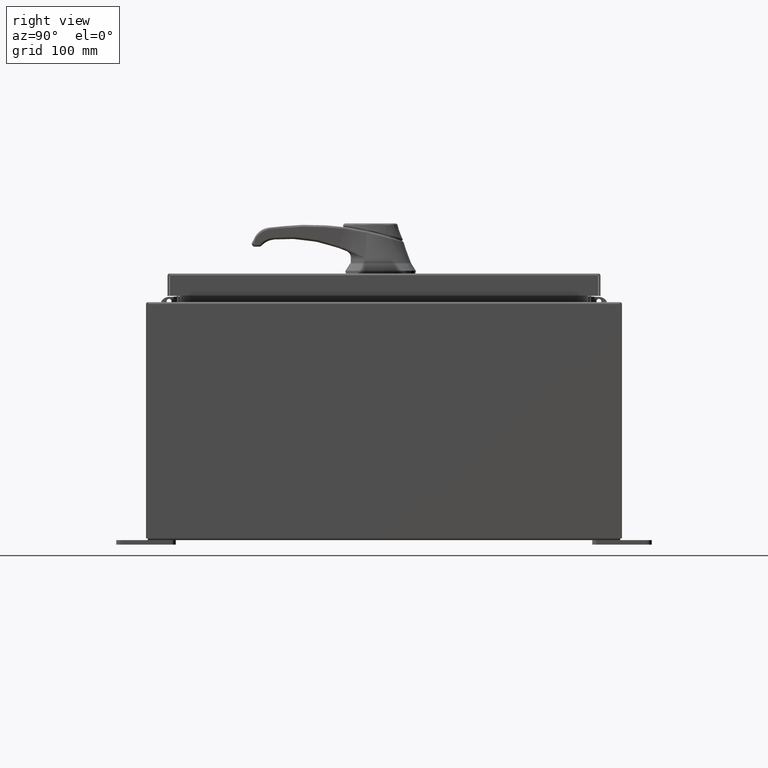
[diagram: clean part render]
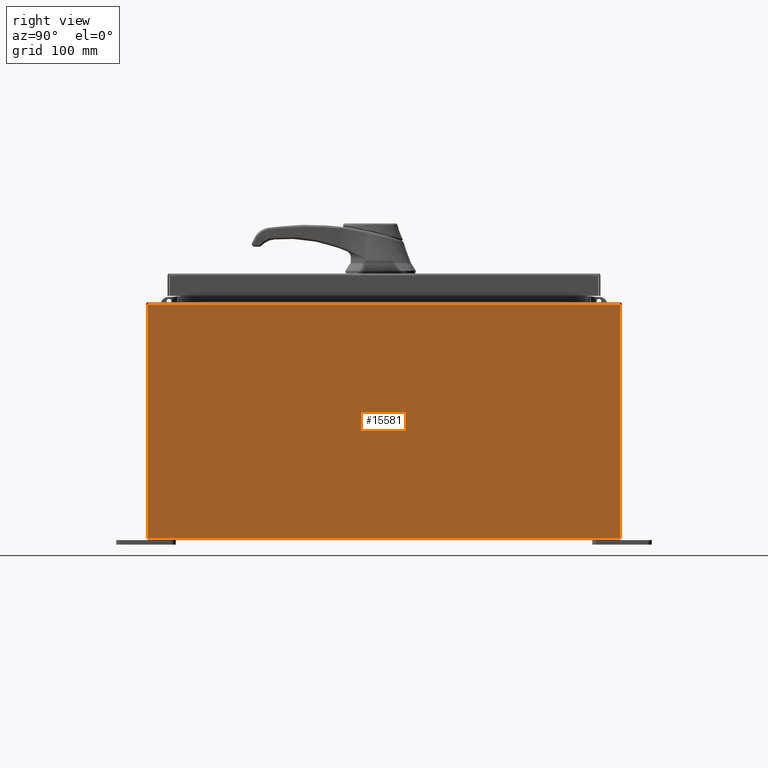
[diagram: same view with one face highlighted and labeled with its STEP entity id]
A machine part, right view. The second image highlights one B-rep face of the part: STEP entity #15581.
In plain terms, the highlighted planar face has unit normal (-1, 0, 0).
Its self-contained STEP definition (entity closure, byte-faithful):
#2082 = DIRECTION ( 'NONE',  ( -1.000000000000000000, 0.0000000000000000000, 3.523082860860887800E-015 ) ) ;
#3645 = FACE_OUTER_BOUND ( 'NONE', #38645, .T. ) ;
#4154 = ORIENTED_EDGE ( 'NONE', *, *, #110571, .F. ) ;
#4390 = CARTESIAN_POINT ( 'NONE',  ( 8.000000000000035500, 9.925299999999987600, 9.837599999999998300 ) ) ;
#6647 = EDGE_CURVE ( 'NONE', #35053, #91561, #94602, .T. ) ;
#11457 = VECTOR ( 'NONE', #40265, 39.37007874015748100 ) ;
#13352 = VERTEX_POINT ( 'NONE', #86446 ) ;
#15581 = ADVANCED_FACE ( 'NONE', ( #3645 ), #95739, .F. ) ;
#23752 = DIRECTION ( 'NONE',  ( -0.0000000000000000000, -1.000000000000000000, -0.0000000000000000000 ) ) ;
#27519 = LINE ( 'NONE', #69293, #70148 ) ;
#30925 = VERTEX_POINT ( 'NONE', #105862 ) ;
#33107 = EDGE_CURVE ( 'NONE', #30925, #35053, #51458, .T. ) ;
#35053 = VERTEX_POINT ( 'NONE', #4390 ) ;
#38270 = VECTOR ( 'NONE', #79884, 39.37007874015748100 ) ;
#38645 = EDGE_LOOP ( 'NONE', ( #76318, #78657, #4154, #70845 ) ) ;
#40265 = DIRECTION ( 'NONE',  ( 3.523082860860888200E-015, -2.201926788038055100E-016, 1.000000000000000000 ) ) ;
#49241 = VECTOR ( 'NONE', #23752, 39.37007874015748100 ) ;
#51458 = LINE ( 'NONE', #91309, #11457 ) ;
#55775 = CARTESIAN_POINT ( 'NONE',  ( 8.000000000000037300, -9.925300000000005300, 9.837599999999998300 ) ) ;
#61755 = DIRECTION ( 'NONE',  ( 3.523082860860887800E-015, 0.0000000000000000000, 1.000000000000000000 ) ) ;
#67063 = EDGE_CURVE ( 'NONE', #91561, #13352, #27519, .T. ) ;
#69293 = CARTESIAN_POINT ( 'NONE',  ( 8.000000000000001800, -9.925300000000001800, -2.844547654289869600E-014 ) ) ;
#70148 = VECTOR ( 'NONE', #95060, 39.37007874015748100 ) ;
#70845 = ORIENTED_EDGE ( 'NONE', *, *, #33107, .T. ) ;
#71289 = CARTESIAN_POINT ( 'NONE',  ( 8.000000000000001800, -9.925300000000001800, 0.01299999999999984700 ) ) ;
#76318 = ORIENTED_EDGE ( 'NONE', *, *, #6647, .T. ) ;
#78657 = ORIENTED_EDGE ( 'NONE', *, *, #67063, .T. ) ;
#79008 = AXIS2_PLACEMENT_3D ( 'NONE', #104319, #2082, #61755 ) ;
#79884 = DIRECTION ( 'NONE',  ( -0.0000000000000000000, -1.000000000000000000, -0.0000000000000000000 ) ) ;
#83599 = LINE ( 'NONE', #71289, #38270 ) ;
#86446 = CARTESIAN_POINT ( 'NONE',  ( 8.000000000000001800, -9.925300000000001800, 0.01299999999999984300 ) ) ;
#91309 = CARTESIAN_POINT ( 'NONE',  ( 8.000000000000001800, 9.925299999999998200, -2.625999814796728400E-014 ) ) ;
#91561 = VERTEX_POINT ( 'NONE', #55775 ) ;
#94602 = LINE ( 'NONE', #108757, #49241 ) ;
#95060 = DIRECTION ( 'NONE',  ( -3.523082860860888200E-015, 0.0000000000000000000, -1.000000000000000000 ) ) ;
#95739 = PLANE ( 'NONE',  #79008 ) ;
#104319 = CARTESIAN_POINT ( 'NONE',  ( 8.000000000000001800, 0.0000000000000000000, -2.844547654289869600E-014 ) ) ;
#105862 = CARTESIAN_POINT ( 'NONE',  ( 8.000000000000001800, 9.925299999999992900, 0.01299999999999984700 ) ) ;
#108757 = CARTESIAN_POINT ( 'NONE',  ( 8.000000000000035500, 9.925299999999991100, 9.837599999999998300 ) ) ;
#110571 = EDGE_CURVE ( 'NONE', #30925, #13352, #83599, .T. ) ;